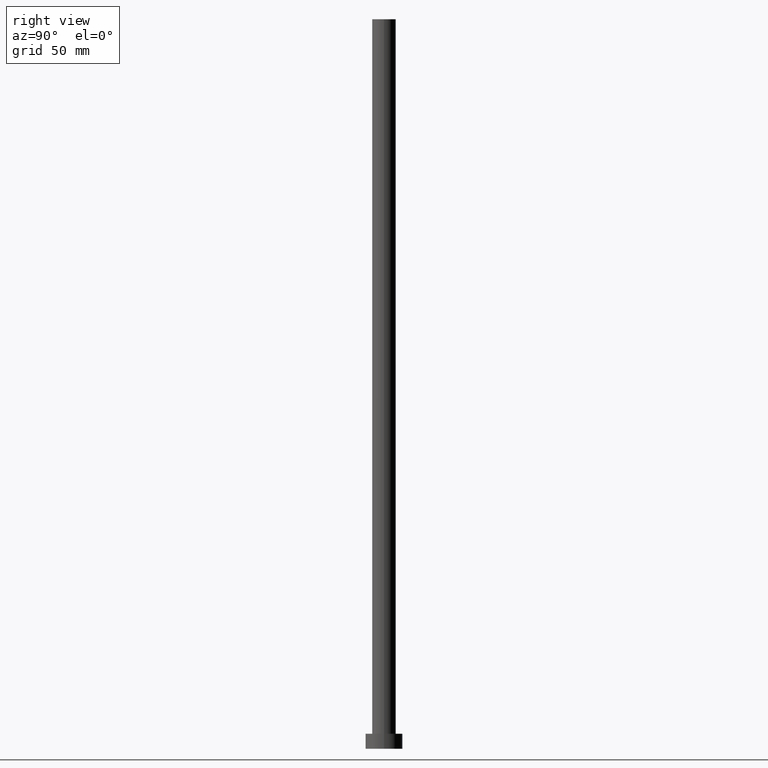
[diagram: clean part render]
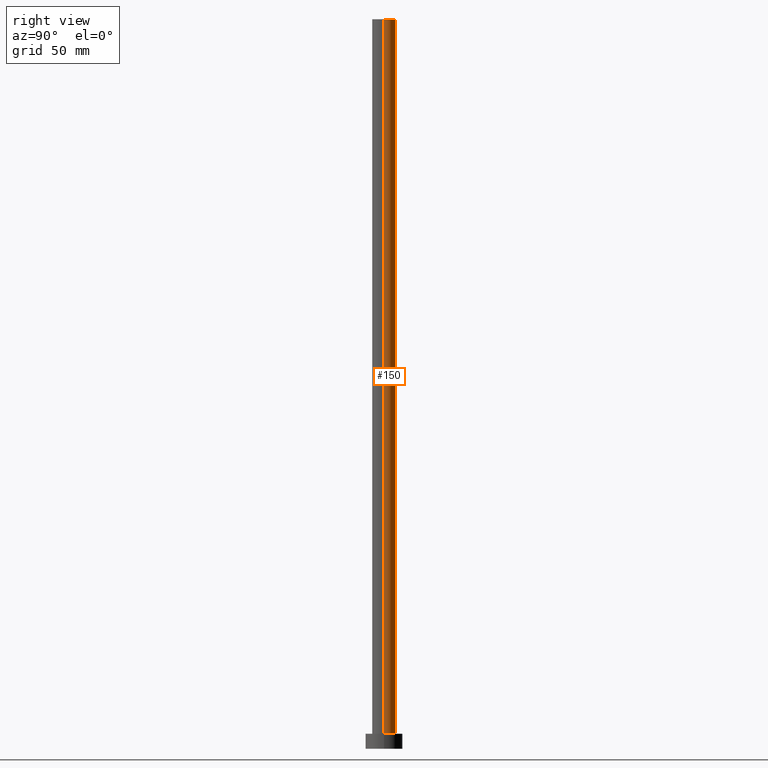
[diagram: same view with one face highlighted and labeled with its STEP entity id]
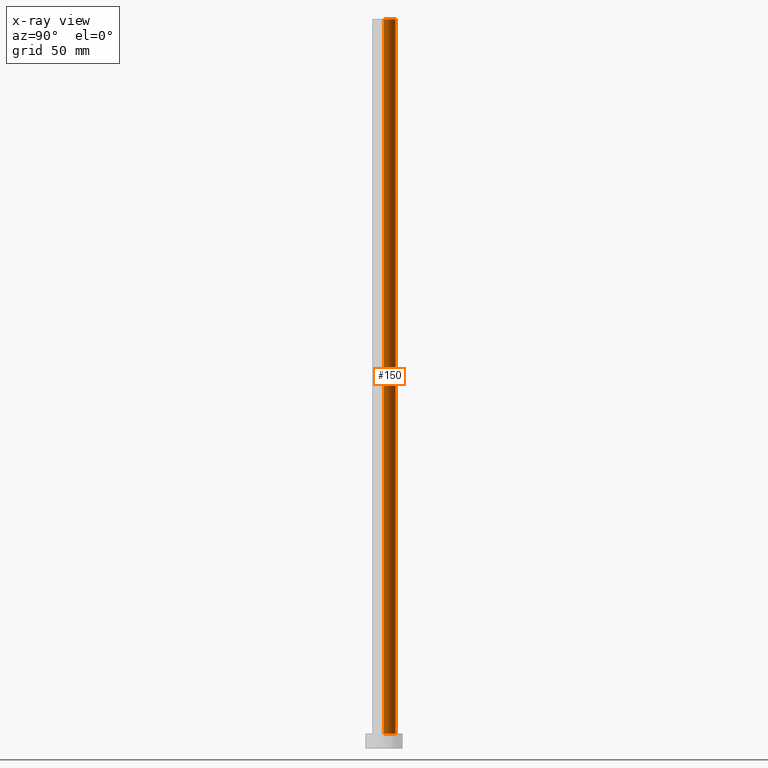
[diagram: x-ray of the same camera — body ghosted, the highlighted face saturated]
A machine part, right view. The second image highlights one B-rep face of the part: STEP entity #150.
The next image is the same camera in x-ray: the body ghosted, the highlighted face saturated — about 0% of this face is hidden behind the body in this view.
In plain terms, the highlighted cylindrical surface (edge-blend (fillet) strip) has radius 5.1 mm, axis along (-0, -0, -1).
Its self-contained STEP definition (entity closure, byte-faithful):
#9 = CARTESIAN_POINT ( 'NONE',  ( -5.100000000000001421, 0.000000000000000000, 6.500000000000000000 ) ) ;
#12 = AXIS2_PLACEMENT_3D ( 'NONE', #24, #142, #155 ) ;
#20 = DIRECTION ( 'NONE',  ( -0.000000000000000000, -0.000000000000000000, -1.000000000000000000 ) ) ;
#21 = FACE_OUTER_BOUND ( 'NONE', #129, .T. ) ;
#24 = CARTESIAN_POINT ( 'NONE',  ( 0.000000000000000000, 0.000000000000000000, 315.0000000000000000 ) ) ;
#40 = AXIS2_PLACEMENT_3D ( 'NONE', #46, #236, #178 ) ;
#46 = CARTESIAN_POINT ( 'NONE',  ( 0.000000000000000000, 0.000000000000000000, 6.500000000000000000 ) ) ;
#49 = CYLINDRICAL_SURFACE ( 'NONE', #12, 5.100000000000001421 ) ;
#50 = EDGE_CURVE ( 'NONE', #114, #135, #170, .T. ) ;
#58 = EDGE_CURVE ( 'NONE', #114, #113, #62, .T. ) ;
#62 = LINE ( 'NONE', #130, #208 ) ;
#64 = CARTESIAN_POINT ( 'NONE',  ( -5.100000000000001421, 0.000000000000000000, 315.0000000000000000 ) ) ;
#79 = CIRCLE ( 'NONE', #40, 5.100000000000001421 ) ;
#80 = ORIENTED_EDGE ( 'NONE', *, *, #58, .T. ) ;
#85 = CARTESIAN_POINT ( 'NONE',  ( -5.100000000000001421, 0.000000000000000000, 315.0000000000000000 ) ) ;
#96 = ORIENTED_EDGE ( 'NONE', *, *, #206, .F. ) ;
#113 = VERTEX_POINT ( 'NONE', #158 ) ;
#114 = VERTEX_POINT ( 'NONE', #218 ) ;
#117 = ORIENTED_EDGE ( 'NONE', *, *, #197, .T. ) ;
#123 = LINE ( 'NONE', #64, #145 ) ;
#128 = AXIS2_PLACEMENT_3D ( 'NONE', #229, #196, #190 ) ;
#129 = EDGE_LOOP ( 'NONE', ( #186, #80, #117, #96 ) ) ;
#130 = CARTESIAN_POINT ( 'NONE',  ( 5.100000000000001421, 6.245698675651501825E-16, 315.0000000000000000 ) ) ;
#135 = VERTEX_POINT ( 'NONE', #85 ) ;
#142 = DIRECTION ( 'NONE',  ( -0.000000000000000000, -0.000000000000000000, -1.000000000000000000 ) ) ;
#145 = VECTOR ( 'NONE', #20, 1000.000000000000000 ) ;
#150 = ADVANCED_FACE ( 'NONE', ( #21 ), #49, .T. ) ;
#155 = DIRECTION ( 'NONE',  ( -1.000000000000000000, 0.000000000000000000, 0.000000000000000000 ) ) ;
#158 = CARTESIAN_POINT ( 'NONE',  ( 5.100000000000001421, 6.245698675651501825E-16, 6.500000000000000000 ) ) ;
#166 = VERTEX_POINT ( 'NONE', #9 ) ;
#170 = CIRCLE ( 'NONE', #128, 5.100000000000001421 ) ;
#178 = DIRECTION ( 'NONE',  ( 1.000000000000000000, 0.000000000000000000, 0.000000000000000000 ) ) ;
#186 = ORIENTED_EDGE ( 'NONE', *, *, #50, .F. ) ;
#190 = DIRECTION ( 'NONE',  ( 1.000000000000000000, 0.000000000000000000, 0.000000000000000000 ) ) ;
#196 = DIRECTION ( 'NONE',  ( 0.000000000000000000, 0.000000000000000000, 1.000000000000000000 ) ) ;
#197 = EDGE_CURVE ( 'NONE', #113, #166, #79, .T. ) ;
#206 = EDGE_CURVE ( 'NONE', #135, #166, #123, .T. ) ;
#208 = VECTOR ( 'NONE', #253, 1000.000000000000000 ) ;
#218 = CARTESIAN_POINT ( 'NONE',  ( 5.100000000000001421, 6.245698675651501825E-16, 315.0000000000000000 ) ) ;
#229 = CARTESIAN_POINT ( 'NONE',  ( 0.000000000000000000, 0.000000000000000000, 315.0000000000000000 ) ) ;
#236 = DIRECTION ( 'NONE',  ( 0.000000000000000000, 0.000000000000000000, 1.000000000000000000 ) ) ;
#253 = DIRECTION ( 'NONE',  ( -0.000000000000000000, -0.000000000000000000, -1.000000000000000000 ) ) ;